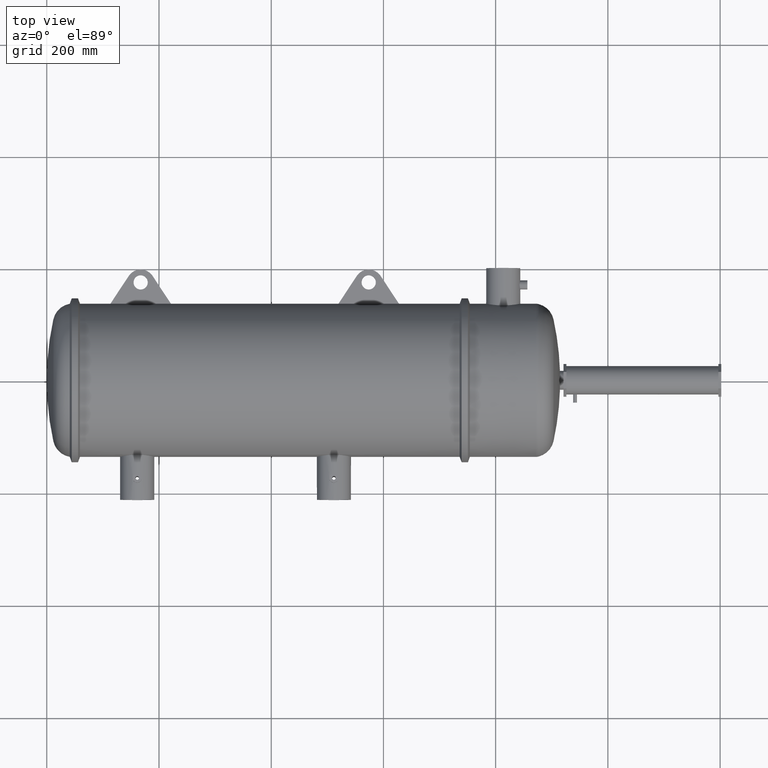
[diagram: clean part render]
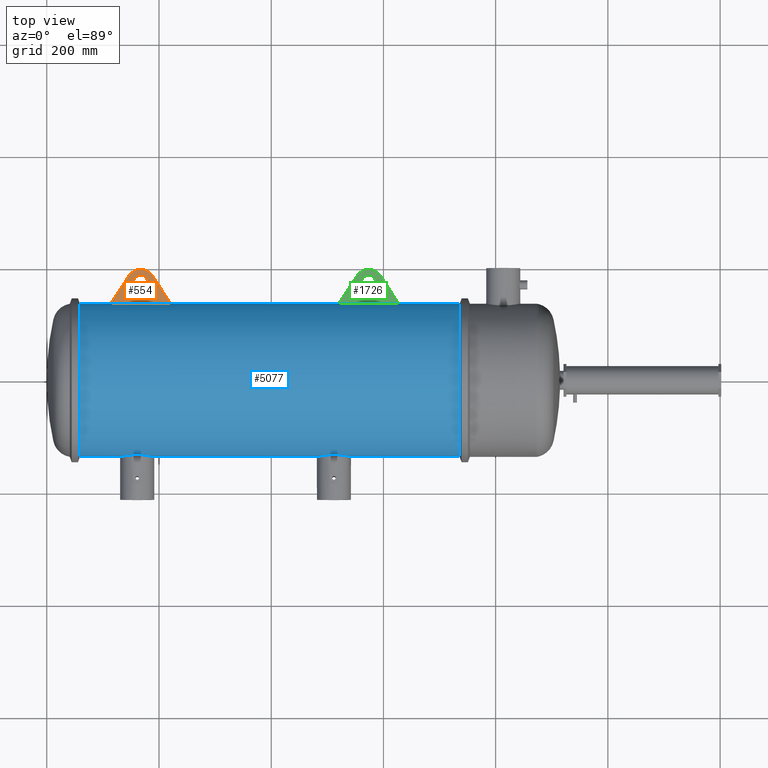
[diagram: same view with three faces highlighted in distinct colors, each labeled with its STEP entity id]
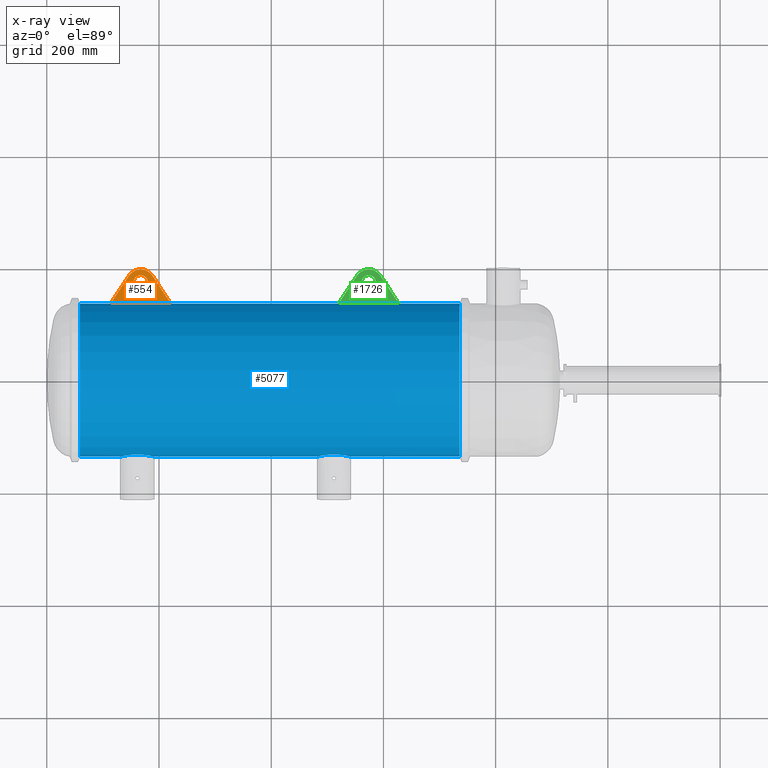
[diagram: x-ray of the same camera — body ghosted, the three highlighted faces saturated]
A machine part, top view with three faces highlighted in distinct colors.
The next image is the same camera in x-ray (body ghosted, the three faces saturated) — at least one of them is partly hidden behind the body in this view.
Their STEP definitions:

[orange] entity #554 — the highlighted planar face has unit normal (-0, 0, 1).
#82 = ORIENTED_EDGE ( 'NONE', *, *, #4772, .T. ) ;
#318 = DIRECTION ( 'NONE',  ( 1.000000000000000000, -1.127465836012422800E-020, 0.0000000000000000000 ) ) ;
#380 = VECTOR ( 'NONE', #318, 39.37007874015748100 ) ;
#395 = EDGE_CURVE ( 'NONE', #2654, #2582, #5190, .T. ) ;
#473 = AXIS2_PLACEMENT_3D ( 'NONE', #3913, #2188, #5355 ) ;
#554 = ADVANCED_FACE ( 'NONE', ( #3702, #671 ), #3257, .T. ) ;
#657 = CIRCLE ( 'NONE', #473, 0.5000000000000236500 ) ;
#671 = FACE_OUTER_BOUND ( 'NONE', #4018, .T. ) ;
#715 = CARTESIAN_POINT ( 'NONE',  ( 6.587435272225750500, 6.873161847635675100, 0.1250000000000000000 ) ) ;
#815 = EDGE_LOOP ( 'NONE', ( #3046, #2732 ) ) ;
#824 = CARTESIAN_POINT ( 'NONE',  ( 8.541339260878247700, 5.632613194402193100, 0.1250000000000000000 ) ) ;
#1002 = VECTOR ( 'NONE', #5394, 39.37007874015748900 ) ;
#1088 = VECTOR ( 'NONE', #3783, 39.37007874015748100 ) ;
#1440 = VERTEX_POINT ( 'NONE', #1548 ) ;
#1548 = CARTESIAN_POINT ( 'NONE',  ( 7.394061296271687800, 7.372354586900658400, 0.1250000000000000000 ) ) ;
#1574 = CARTESIAN_POINT ( 'NONE',  ( 6.087435272225726600, 6.873161847635675100, 0.1250000000000000000 ) ) ;
#1832 = EDGE_CURVE ( 'NONE', #5641, #5034, #657, .T. ) ;
#1883 = CARTESIAN_POINT ( 'NONE',  ( 0.0000000000000000000, 0.0000000000000000000, 0.1250000000000000000 ) ) ;
#1918 = DIRECTION ( 'NONE',  ( -0.0000000000000000000, 0.0000000000000000000, 1.000000000000000000 ) ) ;
#2040 = CARTESIAN_POINT ( 'NONE',  ( 8.712182130583267200, 5.373545713627409600, 0.1250000000000000000 ) ) ;
#2134 = CARTESIAN_POINT ( 'NONE',  ( -0.0007269337269812082200, 5.373545713627409600, 0.1250000000000000000 ) ) ;
#2165 = VERTEX_POINT ( 'NONE', #2040 ) ;
#2188 = DIRECTION ( 'NONE',  ( -0.0000000000000000000, 0.0000000000000000000, 1.000000000000000000 ) ) ;
#2397 = CARTESIAN_POINT ( 'NONE',  ( 0.6405327168248127200, -0.4224013352940694200, 0.1250000000000000000 ) ) ;
#2559 = CIRCLE ( 'NONE', #4883, 0.9999999999999740200 ) ;
#2582 = VERTEX_POINT ( 'NONE', #4405 ) ;
#2654 = VERTEX_POINT ( 'NONE', #5095 ) ;
#2732 = ORIENTED_EDGE ( 'NONE', *, *, #2743, .F. ) ;
#2743 = EDGE_CURVE ( 'NONE', #5034, #5641, #5037, .T. ) ;
#2856 = EDGE_CURVE ( 'NONE', #2654, #2165, #3751, .T. ) ;
#2866 = ORIENTED_EDGE ( 'NONE', *, *, #2856, .T. ) ;
#2950 = EDGE_CURVE ( 'NONE', #1440, #2582, #2559, .T. ) ;
#3046 = ORIENTED_EDGE ( 'NONE', *, *, #1832, .F. ) ;
#3257 = PLANE ( 'NONE',  #5497 ) ;
#3443 = DIRECTION ( 'NONE',  ( 1.000000000000000000, 0.0000000000000000000, 0.0000000000000000000 ) ) ;
#3602 = ORIENTED_EDGE ( 'NONE', *, *, #2950, .T. ) ;
#3702 = FACE_BOUND ( 'NONE', #815, .T. ) ;
#3751 = LINE ( 'NONE', #2134, #380 ) ;
#3783 = DIRECTION ( 'NONE',  ( 0.5505241841823829100, 0.8348192155373053100, 0.0000000000000000000 ) ) ;
#3834 = DIRECTION ( 'NONE',  ( -0.0000000000000000000, 0.0000000000000000000, 1.000000000000000000 ) ) ;
#3913 = CARTESIAN_POINT ( 'NONE',  ( 6.587435272225750500, 6.873161847635675100, 0.1250000000000000000 ) ) ;
#4018 = EDGE_LOOP ( 'NONE', ( #5534, #2866, #82, #3602 ) ) ;
#4241 = LINE ( 'NONE', #824, #1002 ) ;
#4336 = CARTESIAN_POINT ( 'NONE',  ( 6.587435286250647300, 6.781292424385170200, 0.1250000000000000000 ) ) ;
#4397 = DIRECTION ( 'NONE',  ( -0.0000000000000000000, 0.0000000000000000000, 1.000000000000000000 ) ) ;
#4405 = CARTESIAN_POINT ( 'NONE',  ( 5.780809276228903400, 7.372354586899699100, 0.1250000000000000000 ) ) ;
#4772 = EDGE_CURVE ( 'NONE', #2165, #1440, #4241, .T. ) ;
#4883 = AXIS2_PLACEMENT_3D ( 'NONE', #4336, #4397, #3443 ) ;
#5034 = VERTEX_POINT ( 'NONE', #5199 ) ;
#5037 = CIRCLE ( 'NONE', #5078, 0.5000000000000236500 ) ;
#5078 = AXIS2_PLACEMENT_3D ( 'NONE', #715, #3834, #5655 ) ;
#5095 = CARTESIAN_POINT ( 'NONE',  ( 4.462688413873690900, 5.373545713627409600, 0.1250000000000000000 ) ) ;
#5190 = LINE ( 'NONE', #2397, #1088 ) ;
#5199 = CARTESIAN_POINT ( 'NONE',  ( 7.087435272225773600, 6.873161847635675100, 0.1250000000000000000 ) ) ;
#5355 = DIRECTION ( 'NONE',  ( 1.000000000000000000, 0.0000000000000000000, 0.0000000000000000000 ) ) ;
#5394 = DIRECTION ( 'NONE',  ( -0.5505241760193765300, 0.8348192209204254900, 0.0000000000000000000 ) ) ;
#5497 = AXIS2_PLACEMENT_3D ( 'NONE', #1883, #1918, #5509 ) ;
#5509 = DIRECTION ( 'NONE',  ( 1.000000000000000000, 0.0000000000000000000, 0.0000000000000000000 ) ) ;
#5534 = ORIENTED_EDGE ( 'NONE', *, *, #395, .F. ) ;
#5641 = VERTEX_POINT ( 'NONE', #1574 ) ;
#5655 = DIRECTION ( 'NONE',  ( 1.000000000000000000, 0.0000000000000000000, 0.0000000000000000000 ) ) ;

[blue] entity #5077 — the highlighted cylindrical surface (partial cylindrical patch) has radius 136.439 mm, axis along (-1, 0, -0).
#33 = DIRECTION ( 'NONE',  ( -1.000000000000000000, 1.127465836012422800E-020, -0.0000000000000000000 ) ) ;
#49 = DIRECTION ( 'NONE',  ( -1.000000000000000000, 1.127465836012422800E-020, -0.0000000000000000000 ) ) ;
#68 = VERTEX_POINT ( 'NONE', #412 ) ;
#111 = CARTESIAN_POINT ( 'NONE',  ( 20.06735880377336300, -5.233779090356986100, 1.194397006876826200 ) ) ;
#126 = CARTESIAN_POINT ( 'NONE',  ( 19.31370183040849800, -5.299003630638065200, 0.8598501731726979600 ) ) ;
#128 = EDGE_CURVE ( 'NONE', #5117, #2629, #1024, .T. ) ;
#144 = CARTESIAN_POINT ( 'NONE',  ( 19.72392412461144000, -5.250205793346866700, 1.119955949187681800 ) ) ;
#156 = AXIS2_PLACEMENT_3D ( 'NONE', #3772, #2430, #5175 ) ;
#164 = CARTESIAN_POINT ( 'NONE',  ( 20.10683867415926700, -5.233331567630942900, 1.196357597203484800 ) ) ;
#167 = EDGE_CURVE ( 'NONE', #4083, #768, #3010, .T. ) ;
#199 = VECTOR ( 'NONE', #871, 39.37007874015748100 ) ;
#208 = CARTESIAN_POINT ( 'NONE',  ( 21.11861795262816700, -5.322680822778227000, 0.6983892442578063500 ) ) ;
#249 = AXIS2_PLACEMENT_3D ( 'NONE', #1336, #33, #988 ) ;
#253 = CARTESIAN_POINT ( 'NONE',  ( 6.326213538751625600, -5.233220782902260600, 1.196841999300759100 ) ) ;
#269 = CARTESIAN_POINT ( 'NONE',  ( 5.960658024388714600, -5.247379026966949100, 1.133134895030052800 ) ) ;
#286 = CARTESIAN_POINT ( 'NONE',  ( 5.979306186552293000, -5.246041029533571100, 1.139311902248827200 ) ) ;
#293 = VERTEX_POINT ( 'NONE', #2851 ) ;
#305 = CIRCLE ( 'NONE', #156, 5.371625673612975000 ) ;
#318 = DIRECTION ( 'NONE',  ( 1.000000000000000000, -1.127465836012422800E-020, 0.0000000000000000000 ) ) ;
#328 = CARTESIAN_POINT ( 'NONE',  ( 5.149611386536401300, -5.368251035232424900, 3.934038153631442900E-022 ) ) ;
#330 = CARTESIAN_POINT ( 'NONE',  ( -0.0007269337269812082200, 5.373545713627409600, 0.1250000000000000000 ) ) ;
#345 = CARTESIAN_POINT ( 'NONE',  ( 7.543312173937978000, -5.368251035232425700, 0.07932594045176891200 ) ) ;
#352 = CARTESIAN_POINT ( 'NONE',  ( 20.46364765338795200, 5.375000311993521700, 6.578344187407872600E-016 ) ) ;
#364 = CARTESIAN_POINT ( 'NONE',  ( 7.479635900639077100, -5.354411179039209900, 0.3871925882771870600 ) ) ;
#380 = VECTOR ( 'NONE', #318, 39.37007874015748100 ) ;
#405 = CARTESIAN_POINT ( 'NONE',  ( 7.421417180750509600, -5.342332131595959800, 0.5319785464895411300 ) ) ;
#412 = CARTESIAN_POINT ( 'NONE',  ( 24.71122289108931700, 5.375000311993521700, 6.578344187407872600E-016 ) ) ;
#458 = CARTESIAN_POINT ( 'NONE',  ( 18.94961138653640700, -5.368251035232425700, 0.07825224946126402300 ) ) ;
#488 = ORIENTED_EDGE ( 'NONE', *, *, #982, .T. ) ;
#500 = EDGE_CURVE ( 'NONE', #3651, #2485, #4266, .T. ) ;
#562 = CARTESIAN_POINT ( 'NONE',  ( 18.98041546848513100, -5.361466323446761900, 0.2726792930738178300 ) ) ;
#584 = CARTESIAN_POINT ( 'NONE',  ( 20.45644482302516900, -5.242249987839469000, 1.156686122263862200 ) ) ;
#598 = CARTESIAN_POINT ( 'NONE',  ( 19.13006903465265300, -5.330902090584523000, 0.6331893477554764200 ) ) ;
#600 = CARTESIAN_POINT ( 'NONE',  ( 21.22148006781654000, -5.342344859803780800, 0.5318484861100810600 ) ) ;
#616 = CARTESIAN_POINT ( 'NONE',  ( 20.04772051198501600, -5.234113288567275600, 1.192931914414428800 ) ) ;
#620 = CARTESIAN_POINT ( 'NONE',  ( 21.01989743351668600, -5.305492023519797800, 0.8191888919053246200 ) ) ;
#639 = EDGE_CURVE ( 'NONE', #4352, #768, #2416, .T. ) ;
#685 = CARTESIAN_POINT ( 'NONE',  ( 6.502797354559925600, -5.234990743197099200, 1.189173855986971100 ) ) ;
#698 = DIRECTION ( 'NONE',  ( -1.000000000000000000, 1.127465836012422800E-020, -0.0000000000000000000 ) ) ;
#729 = CARTESIAN_POINT ( 'NONE',  ( 24.71122289108932100, 5.375000311993521700, 0.04167136849551431700 ) ) ;
#749 = CARTESIAN_POINT ( 'NONE',  ( 5.225982788380800800, -5.351732358042007800, 0.4224913137375762600 ) ) ;
#766 = CARTESIAN_POINT ( 'NONE',  ( 21.34331217393797400, -5.368251035232424900, 0.0000000000000000000 ) ) ;
#768 = VERTEX_POINT ( 'NONE', #766 ) ;
#769 = CARTESIAN_POINT ( 'NONE',  ( 5.272575265292786600, -5.342166920141344200, 0.5298667125895311100 ) ) ;
#805 = CARTESIAN_POINT ( 'NONE',  ( 7.283049283944248700, -5.316301929432665200, 0.7454092601757985600 ) ) ;
#825 = CARTESIAN_POINT ( 'NONE',  ( 6.731550913065497400, -5.247326707212375000, 1.133377135432855700 ) ) ;
#866 = CARTESIAN_POINT ( 'NONE',  ( 7.075426968230679000, -5.283628909777915400, 0.9500474207275049200 ) ) ;
#871 = DIRECTION ( 'NONE',  ( 1.000000000000000000, -1.127465836012422800E-020, 0.0000000000000000000 ) ) ;
#888 = LINE ( 'NONE', #3251, #5182 ) ;
#896 = VERTEX_POINT ( 'NONE', #5323 ) ;
#909 = ORIENTED_EDGE ( 'NONE', *, *, #639, .T. ) ;
#926 = CARTESIAN_POINT ( 'NONE',  ( 5.149611386536401300, -5.368251035232424900, 3.934038153631442900E-022 ) ) ;
#947 = CARTESIAN_POINT ( 'NONE',  ( 20.56892737537739200, -5.250200187789792100, 1.119982121431812600 ) ) ;
#978 = ORIENTED_EDGE ( 'NONE', *, *, #167, .F. ) ;
#981 = CARTESIAN_POINT ( 'NONE',  ( 20.30324904070974100, -5.235004604428955800, 1.189113119929174900 ) ) ;
#982 = EDGE_CURVE ( 'NONE', #68, #2485, #997, .T. ) ;
#988 = DIRECTION ( 'NONE',  ( 0.0000000000000000000, -1.000000000000000000, 0.0000000000000000000 ) ) ;
#993 = CARTESIAN_POINT ( 'NONE',  ( 19.37185984747718600, -5.290177449395270200, 0.9125946016845124500 ) ) ;
#997 =( BOUNDED_CURVE ( )  B_SPLINE_CURVE ( 3, ( #2538, #729, #3884, #1607 ),
 .UNSPECIFIED., .F., .T. ) 
 B_SPLINE_CURVE_WITH_KNOTS ( ( 4, 4 ),
 ( 0.0000000000000000000, 0.02327252341427968000 ),
 .UNSPECIFIED. ) 
 CURVE ( )  GEOMETRIC_REPRESENTATION_ITEM ( )  RATIONAL_B_SPLINE_CURVE ( ( 1.000000000000000000, 0.9999548663137659600, 0.9999548663137659600, 1.000000000000000000 ) ) 
 REPRESENTATION_ITEM ( '' )  );
#1012 = CARTESIAN_POINT ( 'NONE',  ( 19.24474850139872100, -5.310007799299198100, 0.7908561555310276200 ) ) ;
#1013 = EDGE_CURVE ( 'NONE', #2630, #2388, #2865, .T. ) ;
#1024 = CIRCLE ( 'NONE', #249, 5.371625673612972400 ) ;
#1028 = CARTESIAN_POINT ( 'NONE',  ( 19.76103299708881900, -5.247351466558344100, 1.133262569603068700 ) ) ;
#1041 = ORIENTED_EDGE ( 'NONE', *, *, #128, .F. ) ;
#1043 = CARTESIAN_POINT ( 'NONE',  ( -0.0007269337269812082200, 5.375000311993521700, 6.578344187407872600E-016 ) ) ;
#1050 = ORIENTED_EDGE ( 'NONE', *, *, #3248, .T. ) ;
#1052 = CARTESIAN_POINT ( 'NONE',  ( 21.30222816600492000, -5.359244614724526700, 0.3115207655409570300 ) ) ;
#1102 = ORIENTED_EDGE ( 'NONE', *, *, #5627, .F. ) ;
#1103 = ORIENTED_EDGE ( 'NONE', *, *, #2642, .T. ) ;
#1109 = CARTESIAN_POINT ( 'NONE',  ( 21.34331217393797100, -5.368251035232424900, 0.07930491497186011000 ) ) ;
#1147 = CARTESIAN_POINT ( 'NONE',  ( -0.0007269337269812082200, -5.368251035232424900, 0.0000000000000000000 ) ) ;
#1176 = CARTESIAN_POINT ( 'NONE',  ( 5.180399016999389900, -5.361469904903833200, 0.2726073616226137900 ) ) ;
#1195 = CARTESIAN_POINT ( 'NONE',  ( 5.556712643078353300, -5.292417010794805400, 0.8995174716596676700 ) ) ;
#1224 = EDGE_CURVE ( 'NONE', #2630, #5117, #888, .T. ) ;
#1249 = CARTESIAN_POINT ( 'NONE',  ( 4.462688413873690900, 5.373545713627409600, 0.1250000000000000000 ) ) ;
#1250 = CARTESIAN_POINT ( 'NONE',  ( 6.945853462457661100, -5.267014283931655600, 1.038905606634983800 ) ) ;
#1267 = VECTOR ( 'NONE', #2277, 39.37007874015748100 ) ;
#1306 = ORIENTED_EDGE ( 'NONE', *, *, #1390, .T. ) ;
#1336 = CARTESIAN_POINT ( 'NONE',  ( 2.329100979084119100, 0.003374638380548247100, 0.0000000000000000000 ) ) ;
#1350 = B_SPLINE_CURVE_WITH_KNOTS ( 'NONE', 3,
 ( #2769, #458, #3771, #562, #2840, #2365, #5080, #1935, #2429, #5541, #598, #3273, #1012, #126, #3291, #1955, #993, #4149, #2803, #5559, #4166, #2857, #144, #1028, #4626, #3712, #1458, #2347, #5520, #616, #111, #164, #1493, #1441 ),
 .UNSPECIFIED., .F., .F.,
 ( 4, 2, 2, 2, 2, 2, 2, 2, 2, 2, 2, 2, 2, 2, 2, 2, 4 ),
 ( 0.09534419062650140200, 0.1013032078315040400, 0.1042827164340053800, 0.1072622250365067300, 0.1102417336390080600, 0.1132212422415094000, 0.1191802594465120600, 0.1206700137477628300, 0.1221597680490135700, 0.1251392766515150900, 0.1310982938565180600, 0.1325880481577690600, 0.1340778024590200400, 0.1370573110615223000, 0.1400368196640245600, 0.1415265739652755200, 0.1430163282665264900 ),
 .UNSPECIFIED. ) ;
#1390 = EDGE_CURVE ( 'NONE', #293, #2629, #4184, .T. ) ;
#1427 = CARTESIAN_POINT ( 'NONE',  ( 20.67745853364357000, -5.259580338480863500, 1.075455758541094700 ) ) ;
#1441 = CARTESIAN_POINT ( 'NONE',  ( 20.14646178023718900, -5.233218864319112200, 1.196850393700786800 ) ) ;
#1458 = CARTESIAN_POINT ( 'NONE',  ( 19.87384576257918000, -5.240170712604278700, 1.166042836996396000 ) ) ;
#1474 = CARTESIAN_POINT ( 'NONE',  ( 21.33550657205138300, -5.366496152617634700, 0.1575296930776905700 ) ) ;
#1493 = CARTESIAN_POINT ( 'NONE',  ( 20.12671192958943700, -5.233218864319112200, 1.196850393700786800 ) ) ;
#1496 = CARTESIAN_POINT ( 'NONE',  ( 21.08318138053628100, -5.316325201343868700, 0.7452431268776933400 ) ) ;
#1516 = CARTESIAN_POINT ( 'NONE',  ( 21.12999773239430500, -5.324771274659510400, 0.6822717990872144700 ) ) ;
#1585 = CARTESIAN_POINT ( 'NONE',  ( 5.923561636245130700, -5.250234982434636600, 1.119819046352157600 ) ) ;
#1593 = CARTESIAN_POINT ( 'NONE',  ( 20.46268841387367500, 5.373545713627407800, 0.1250000000000000000 ) ) ;
#1607 = CARTESIAN_POINT ( 'NONE',  ( 24.71218213058318000, 5.373545713627409600, 0.1250000000000000000 ) ) ;
#1611 = CARTESIAN_POINT ( 'NONE',  ( 8.711542652019348400, 5.374515423986700600, 0.08333991581732268200 ) ) ;
#1650 = CARTESIAN_POINT ( 'NONE',  ( 6.149985645058522200, -5.236763931734351700, 1.181258524394167300 ) ) ;
#1668 = CARTESIAN_POINT ( 'NONE',  ( 5.395259596922917600, -5.318736677239390300, 0.7306097749240252300 ) ) ;
#1707 = CARTESIAN_POINT ( 'NONE',  ( 6.712774111565599000, -5.245981530479516800, 1.139586178890254600 ) ) ;
#1763 = ORIENTED_EDGE ( 'NONE', *, *, #4737, .F. ) ;
#1772 = CARTESIAN_POINT ( 'NONE',  ( 7.043640051913278900, -5.279325753257568400, 0.9736166690398270200 ) ) ;
#1845 = CARTESIAN_POINT ( 'NONE',  ( 20.84388587186285200, -5.279358282931522900, 0.9734402259026468900 ) ) ;
#1887 = ORIENTED_EDGE ( 'NONE', *, *, #4988, .T. ) ;
#1903 = LINE ( 'NONE', #2762, #1267 ) ;
#1935 = CARTESIAN_POINT ( 'NONE',  ( 19.05592228707059000, -5.345548050957483500, 0.4946680764367486500 ) ) ;
#1955 = CARTESIAN_POINT ( 'NONE',  ( 19.35691617185209200, -5.292386643314404000, 0.8996962492115383500 ) ) ;
#1957 = CARTESIAN_POINT ( 'NONE',  ( 21.31621825021854000, -5.362277935327468500, 0.2539836251679794500 ) ) ;
#1976 = CARTESIAN_POINT ( 'NONE',  ( 20.93609541495386500, -5.292334797267721500, 0.9002545064773362900 ) ) ;
#2040 = CARTESIAN_POINT ( 'NONE',  ( 8.712182130583267200, 5.373545713627409600, 0.1250000000000000000 ) ) ;
#2041 = CARTESIAN_POINT ( 'NONE',  ( 6.617937425789081700, -5.240110884179146400, 1.166311682372647400 ) ) ;
#2059 = ORIENTED_EDGE ( 'NONE', *, *, #1013, .T. ) ;
#2083 = CARTESIAN_POINT ( 'NONE',  ( 5.513519687782340900, -5.299032257232444600, 0.8596736066039890600 ) ) ;
#2086 = VERTEX_POINT ( 'NONE', #4138 ) ;
#2102 = CARTESIAN_POINT ( 'NONE',  ( 5.571648951850574100, -5.290208332039759900, 0.9124154559410536700 ) ) ;
#2134 = CARTESIAN_POINT ( 'NONE',  ( -0.0007269337269812082200, 5.373545713627409600, 0.1250000000000000000 ) ) ;
#2165 = VERTEX_POINT ( 'NONE', #2040 ) ;
#2203 = CARTESIAN_POINT ( 'NONE',  ( 7.245878840981746700, -5.309841623712728200, 0.7905825859204184100 ) ) ;
#2223 = CARTESIAN_POINT ( 'NONE',  ( 7.516203931738992600, -5.362274812398307100, 0.2540499706158899600 ) ) ;
#2243 = CARTESIAN_POINT ( 'NONE',  ( 4.463647653387963200, 5.375000311993521700, 6.578344187407872600E-016 ) ) ;
#2277 = DIRECTION ( 'NONE',  ( -1.000000000000000000, 1.127465836012422800E-020, -0.0000000000000000000 ) ) ;
#2299 = CARTESIAN_POINT ( 'NONE',  ( 20.87565793828477100, -5.283660843498650700, 0.9498696840078932900 ) ) ;
#2315 = CARTESIAN_POINT ( 'NONE',  ( 2.329100979084119100, 5.375000311993520800, 6.578344187407871700E-016 ) ) ;
#2334 = CARTESIAN_POINT ( 'NONE',  ( 20.58720116444671800, -5.251702843807398000, 1.112915830643174300 ) ) ;
#2347 = CARTESIAN_POINT ( 'NONE',  ( 19.95042480810963100, -5.236747387793254700, 1.181331831600833900 ) ) ;
#2365 = CARTESIAN_POINT ( 'NONE',  ( 19.01283989570337200, -5.354506110197232400, 0.3858565486828770500 ) ) ;
#2388 = VERTEX_POINT ( 'NONE', #2972 ) ;
#2416 = B_SPLINE_CURVE_WITH_KNOTS ( 'NONE', 3,
 ( #5544, #3679, #981, #2825, #584, #4153, #4597, #947, #2334, #1427, #4103, #1845, #2299, #1976, #4203, #620, #2927, #1496, #4648, #208, #1516, #2474, #600, #4631, #5639, #4669, #1052, #2431, #1957, #1474, #1109, #5136 ),
 .UNSPECIFIED., .F., .F.,
 ( 4, 2, 2, 2, 2, 2, 2, 2, 2, 2, 2, 2, 2, 2, 2, 4 ),
 ( 0.1430163282665264900, 0.1489721874126156400, 0.1519501169856602200, 0.1534390817721825200, 0.1549280465587048200, 0.1608839057047942700, 0.1638618352778388700, 0.1668397648508834800, 0.1698176944239280500, 0.1713066592104504600, 0.1727956239969728700, 0.1787514831430626300, 0.1817294127161075400, 0.1832183775026299800, 0.1847073422891524200, 0.1906632014352420400 ),
 .UNSPECIFIED. ) ;
#2429 = CARTESIAN_POINT ( 'NONE',  ( 19.07263917002066800, -5.342154050015828700, 0.5299970225787588000 ) ) ;
#2430 = DIRECTION ( 'NONE',  ( -1.000000000000000000, 1.127465836012422800E-020, -0.0000000000000000000 ) ) ;
#2431 = CARTESIAN_POINT ( 'NONE',  ( 21.31187960085991800, -5.361332996889768100, 0.2732076668192129900 ) ) ;
#2445 = DIRECTION ( 'NONE',  ( -1.000000000000000000, 1.127465836012422800E-020, -0.0000000000000000000 ) ) ;
#2474 = CARTESIAN_POINT ( 'NONE',  ( 21.18471990649060300, -5.334981070294603900, 0.6005510153081257100 ) ) ;
#2483 = VERTEX_POINT ( 'NONE', #2637 ) ;
#2485 = VERTEX_POINT ( 'NONE', #4475 ) ;
#2520 = CARTESIAN_POINT ( 'NONE',  ( 8.712182130583267200, 5.373545713627409600, 0.1250000000000000000 ) ) ;
#2538 = CARTESIAN_POINT ( 'NONE',  ( 24.71122289108931700, 5.375000311993521700, 6.578344187407872600E-016 ) ) ;
#2579 = CARTESIAN_POINT ( 'NONE',  ( 6.266879268636660800, -5.233786381379125000, 1.194365043667188400 ) ) ;
#2629 = VERTEX_POINT ( 'NONE', #2315 ) ;
#2630 = VERTEX_POINT ( 'NONE', #926 ) ;
#2637 = CARTESIAN_POINT ( 'NONE',  ( 8.711222891089402500, 5.375000311993521700, 6.578344187407872600E-016 ) ) ;
#2638 = CARTESIAN_POINT ( 'NONE',  ( 6.877144396762638200, -5.259548232879795100, 1.075612466819988900 ) ) ;
#2642 = EDGE_CURVE ( 'NONE', #2086, #4352, #1350, .T. ) ;
#2654 = VERTEX_POINT ( 'NONE', #5095 ) ;
#2669 =( BOUNDED_CURVE ( )  B_SPLINE_CURVE ( 3, ( #5252, #3914, #1611, #2520 ),
 .UNSPECIFIED., .F., .T. ) 
 B_SPLINE_CURVE_WITH_KNOTS ( ( 4, 4 ),
 ( 0.0000000000000000000, 0.02327252341427968000 ),
 .UNSPECIFIED. ) 
 CURVE ( )  GEOMETRIC_REPRESENTATION_ITEM ( )  RATIONAL_B_SPLINE_CURVE ( ( 1.000000000000000000, 0.9999548663137659600, 0.9999548663137659600, 1.000000000000000000 ) ) 
 REPRESENTATION_ITEM ( '' )  );
#2680 = CARTESIAN_POINT ( 'NONE',  ( 7.466367960943905800, -5.351612422980320400, 0.4240057391659444700 ) ) ;
#2762 = CARTESIAN_POINT ( 'NONE',  ( -0.0007269337269812082200, 5.375000311993521700, 6.578344187407872600E-016 ) ) ;
#2769 = CARTESIAN_POINT ( 'NONE',  ( 18.94961138653640000, -5.368251035232424900, 3.934107722467178800E-022 ) ) ;
#2789 = EDGE_CURVE ( 'NONE', #2086, #2388, #2834, .T. ) ;
#2803 = CARTESIAN_POINT ( 'NONE',  ( 19.44881216357448400, -5.279389361365066000, 0.9732687153304362400 ) ) ;
#2825 = CARTESIAN_POINT ( 'NONE',  ( 20.41835244524018100, -5.240132478017382100, 1.166214679730571000 ) ) ;
#2834 = LINE ( 'NONE', #1147, #5749 ) ;
#2840 = CARTESIAN_POINT ( 'NONE',  ( 18.99004507753147300, -5.359375321218835500, 0.3109409316231727700 ) ) ;
#2851 = CARTESIAN_POINT ( 'NONE',  ( 4.463647653387963200, 5.375000311993521700, 6.578344187407872600E-016 ) ) ;
#2856 = EDGE_CURVE ( 'NONE', #2654, #2165, #3751, .T. ) ;
#2857 = CARTESIAN_POINT ( 'NONE',  ( 19.70544123432713200, -5.251726001169133800, 1.112806902747038000 ) ) ;
#2865 = B_SPLINE_CURVE_WITH_KNOTS ( 'NONE', 3,
 ( #328, #3841, #3928, #1176, #2997, #4757, #749, #3473, #769, #4368, #2955, #1668, #5227, #2083, #5248, #1195, #2102, #5709, #5686, #3909, #2975, #5664, #1585, #269, #286, #4348, #4817, #1650, #4736, #5291, #2579, #5751, #253, #3393, #685, #2041, #5207, #1707, #825, #3497, #4861, #2638, #1250, #1772, #866, #5810, #4928, #3041, #2203, #805, #3100, #4432, #5375, #5832, #405, #2680, #364, #4008, #3556, #4476, #2223, #4028, #345, #4879 ),
 .UNSPECIFIED., .F., .F.,
 ( 4, 2, 2, 2, 2, 2, 2, 2, 2, 2, 2, 2, 2, 2, 2, 2, 2, 2, 2, 2, 2, 2, 2, 2, 2, 2, 2, 2, 2, 2, 2, 4 ),
 ( 0.09534419062650142900, 0.1013016288020480300, 0.1042803478898213200, 0.1072590669775946200, 0.1102377860653679100, 0.1132165051531412000, 0.1191739433286877300, 0.1206633028725743500, 0.1221526624164609600, 0.1251313815042342500, 0.1310888196797808400, 0.1325781792236674400, 0.1340675387675540100, 0.1370462578553272000, 0.1400249769431004000, 0.1415143364869869400, 0.1430036960308734800, 0.1489611342064197700, 0.1519398532941929600, 0.1534292128380795300, 0.1549185723819660700, 0.1608760105575121300, 0.1638547296452851600, 0.1668334487330581900, 0.1698121678208312200, 0.1713015273647177100, 0.1727908869086042200, 0.1787483250841502300, 0.1817270441719232300, 0.1832164037158097200, 0.1847057632596962000, 0.1906632014352421200 ),
 .UNSPECIFIED. ) ;
#2927 = CARTESIAN_POINT ( 'NONE',  ( 21.04602839329567100, -5.309866994982126400, 0.7904119337010352400 ) ) ;
#2955 = CARTESIAN_POINT ( 'NONE',  ( 5.329975643639637700, -5.330919927525917100, 0.6330388155321699000 ) ) ;
#2972 = CARTESIAN_POINT ( 'NONE',  ( 7.543312173937975400, -5.368251035232424900, 1.465719003703918300E-016 ) ) ;
#2975 = CARTESIAN_POINT ( 'NONE',  ( 5.814238948717513000, -5.259697747504539200, 1.074888450947592900 ) ) ;
#2997 = CARTESIAN_POINT ( 'NONE',  ( 5.190023764821963100, -5.359379929022926700, 0.3108603836466521400 ) ) ;
#3010 = LINE ( 'NONE', #5478, #3294 ) ;
#3012 = CARTESIAN_POINT ( 'NONE',  ( -0.0007269337269812082200, 0.003374638380548247100, 0.0000000000000000000 ) ) ;
#3041 = CARTESIAN_POINT ( 'NONE',  ( 7.219735579985331800, -5.305465330610824800, 0.8193619230316553400 ) ) ;
#3099 = CARTESIAN_POINT ( 'NONE',  ( 4.463647653387963200, 5.375000311993521700, 0.04167136849551240900 ) ) ;
#3100 = CARTESIAN_POINT ( 'NONE',  ( 7.295098059875567900, -5.318438005585744800, 0.7300168180977674200 ) ) ;
#3248 = EDGE_CURVE ( 'NONE', #2483, #2165, #2669, .T. ) ;
#3251 = CARTESIAN_POINT ( 'NONE',  ( -0.0007269337269812082200, -5.368251035232424900, 0.0000000000000000000 ) ) ;
#3273 = CARTESIAN_POINT ( 'NONE',  ( 19.19538431361506500, -5.318714222355722200, 0.7307741862778018800 ) ) ;
#3291 = CARTESIAN_POINT ( 'NONE',  ( 19.32785830992957400, -5.296796767015586700, 0.8733406935244856200 ) ) ;
#3294 = VECTOR ( 'NONE', #49, 39.37007874015748100 ) ;
#3334 = CARTESIAN_POINT ( 'NONE',  ( 20.46268841387367500, 5.373545713627407800, 0.1250000000000000000 ) ) ;
#3393 = CARTESIAN_POINT ( 'NONE',  ( 6.424942663514833000, -5.233211310495377700, 1.196883444037038400 ) ) ;
#3400 = CARTESIAN_POINT ( 'NONE',  ( 20.46364765338795500, 5.375000311993521700, 0.04167136849551240900 ) ) ;
#3473 = CARTESIAN_POINT ( 'NONE',  ( 5.255867040099112800, -5.345559335708038900, 0.4945454419549028000 ) ) ;
#3497 = CARTESIAN_POINT ( 'NONE',  ( 6.768567392986459400, -5.250171224054015300, 1.120117950498966500 ) ) ;
#3556 = CARTESIAN_POINT ( 'NONE',  ( 7.502206400468704600, -5.359239921588832400, 0.3116018472614262000 ) ) ;
#3651 = VERTEX_POINT ( 'NONE', #3334 ) ;
#3673 = DIRECTION ( 'NONE',  ( -1.000000000000000000, 1.127465836012422800E-020, -0.0000000000000000000 ) ) ;
#3679 = CARTESIAN_POINT ( 'NONE',  ( 20.22541931606412300, -5.233218864319112200, 1.196850393700786600 ) ) ;
#3712 = CARTESIAN_POINT ( 'NONE',  ( 19.83594636734299500, -5.242283644783574600, 1.156532605065413900 ) ) ;
#3751 = LINE ( 'NONE', #2134, #380 ) ;
#3771 = CARTESIAN_POINT ( 'NONE',  ( 18.95721047033205400, -5.366541777985773400, 0.1562072958316407200 ) ) ;
#3772 = CARTESIAN_POINT ( 'NONE',  ( 28.97085687440993600, 0.003374638380548246200, 0.0000000000000000000 ) ) ;
#3820 = CYLINDRICAL_SURFACE ( 'NONE', #4487, 5.371625673612973300 ) ;
#3841 = CARTESIAN_POINT ( 'NONE',  ( 5.149611386536401300, -5.368251035232422200, 0.07823151406099317100 ) ) ;
#3849 = CARTESIAN_POINT ( 'NONE',  ( 20.46332789245120100, 5.374515423986700600, 0.08333991581731957400 ) ) ;
#3884 = CARTESIAN_POINT ( 'NONE',  ( 24.71154265201926100, 5.374515423986700600, 0.08333991581732272400 ) ) ;
#3909 = CARTESIAN_POINT ( 'NONE',  ( 5.745630208074263800, -5.267184114183866200, 1.038033561016157700 ) ) ;
#3914 = CARTESIAN_POINT ( 'NONE',  ( 8.711222891089406100, 5.375000311993521700, 0.04167136849551430300 ) ) ;
#3928 = CARTESIAN_POINT ( 'NONE',  ( 5.157206484952144600, -5.366542683423234400, 0.1561659809746099600 ) ) ;
#4005 = ORIENTED_EDGE ( 'NONE', *, *, #2789, .F. ) ;
#4008 = CARTESIAN_POINT ( 'NONE',  ( 7.496886949274720100, -5.358095124985760900, 0.3306969927480602500 ) ) ;
#4028 = CARTESIAN_POINT ( 'NONE',  ( 7.535502472742364500, -5.366495222517627000, 0.1575711749047314400 ) ) ;
#4029 = ORIENTED_EDGE ( 'NONE', *, *, #1224, .F. ) ;
#4061 = VECTOR ( 'NONE', #4195, 39.37007874015748100 ) ;
#4083 = VERTEX_POINT ( 'NONE', #4663 ) ;
#4103 = CARTESIAN_POINT ( 'NONE',  ( 20.74613932162452200, -5.267047131595116800, 1.038739235608049400 ) ) ;
#4113 = VECTOR ( 'NONE', #2445, 39.37007874015748100 ) ;
#4138 = CARTESIAN_POINT ( 'NONE',  ( 18.94961138653640000, -5.368251035232424900, 3.934107722467178800E-022 ) ) ;
#4146 =( BOUNDED_CURVE ( )  B_SPLINE_CURVE ( 3, ( #2243, #3099, #4452, #1249 ),
 .UNSPECIFIED., .F., .T. ) 
 B_SPLINE_CURVE_WITH_KNOTS ( ( 4, 4 ),
 ( 3.141592653589793100, 3.164865177004072100 ),
 .UNSPECIFIED. ) 
 CURVE ( )  GEOMETRIC_REPRESENTATION_ITEM ( )  RATIONAL_B_SPLINE_CURVE ( ( 1.000000000000000000, 0.9999548663137659600, 0.9999548663137659600, 1.000000000000000000 ) ) 
 REPRESENTATION_ITEM ( '' )  );
#4149 = CARTESIAN_POINT ( 'NONE',  ( 19.41742755797065800, -5.283637614936790100, 0.9500025016262005900 ) ) ;
#4150 = EDGE_CURVE ( 'NONE', #896, #68, #5317, .T. ) ;
#4153 = CARTESIAN_POINT ( 'NONE',  ( 20.51315907318373600, -5.246008429860805400, 1.139462290769401200 ) ) ;
#4166 = CARTESIAN_POINT ( 'NONE',  ( 19.61455338196367700, -5.259665511048342300, 1.075045895662295700 ) ) ;
#4184 = LINE ( 'NONE', #1043, #4061 ) ;
#4195 = DIRECTION ( 'NONE',  ( -1.000000000000000000, 1.127465836012422800E-020, -0.0000000000000000000 ) ) ;
#4203 = CARTESIAN_POINT ( 'NONE',  ( 20.96493090713787300, -5.296726030956471700, 0.8741101585906004800 ) ) ;
#4266 = LINE ( 'NONE', #330, #199 ) ;
#4309 = FACE_OUTER_BOUND ( 'NONE', #5660, .T. ) ;
#4348 = CARTESIAN_POINT ( 'NONE',  ( 6.035546129646594900, -5.242307443342081500, 1.156424760125981600 ) ) ;
#4352 = VERTEX_POINT ( 'NONE', #5315 ) ;
#4361 = VERTEX_POINT ( 'NONE', #352 ) ;
#4368 = CARTESIAN_POINT ( 'NONE',  ( 5.309592951364181500, -5.334853464201216900, 0.5990776342022724500 ) ) ;
#4400 = DIRECTION ( 'NONE',  ( -1.000000000000000000, 1.127465836012422800E-020, -0.0000000000000000000 ) ) ;
#4432 = CARTESIAN_POINT ( 'NONE',  ( 7.318502489968257600, -5.322659737006815400, 0.6985500729205111900 ) ) ;
#4452 = CARTESIAN_POINT ( 'NONE',  ( 4.463327892451215600, 5.374515423986700600, 0.08333991581731957400 ) ) ;
#4465 = ORIENTED_EDGE ( 'NONE', *, *, #500, .F. ) ;
#4468 = ORIENTED_EDGE ( 'NONE', *, *, #4150, .T. ) ;
#4475 = CARTESIAN_POINT ( 'NONE',  ( 24.71218213058318000, 5.373545713627409600, 0.1250000000000000000 ) ) ;
#4476 = CARTESIAN_POINT ( 'NONE',  ( 7.511862979137691600, -5.361329383837292200, 0.2732789490833372200 ) ) ;
#4487 = AXIS2_PLACEMENT_3D ( 'NONE', #3012, #4400, #5723 ) ;
#4597 = CARTESIAN_POINT ( 'NONE',  ( 20.53192671714579700, -5.247354310315958300, 1.133249272586620300 ) ) ;
#4626 = CARTESIAN_POINT ( 'NONE',  ( 19.77968744209778500, -5.246014354638135500, 1.139434774620628600 ) ) ;
#4631 = CARTESIAN_POINT ( 'NONE',  ( 21.26640799440981800, -5.351620815929973000, 0.4238990548922949000 ) ) ;
#4648 = CARTESIAN_POINT ( 'NONE',  ( 21.09522450453862100, -5.318460558132514400, 0.7298523501291255300 ) ) ;
#4663 = CARTESIAN_POINT ( 'NONE',  ( 28.97085687440993600, -5.368251035232426600, 0.0000000000000000000 ) ) ;
#4669 = CARTESIAN_POINT ( 'NONE',  ( 21.29691144775958700, -5.358100384753382400, 0.3306114591192724200 ) ) ;
#4736 = CARTESIAN_POINT ( 'NONE',  ( 6.188652025605808400, -5.235450633651401700, 1.187050168042183200 ) ) ;
#4737 = EDGE_CURVE ( 'NONE', #293, #2654, #4146, .T. ) ;
#4757 = CARTESIAN_POINT ( 'NONE',  ( 5.212806853348034500, -5.354513113333683600, 0.3857584326471629700 ) ) ;
#4817 = CARTESIAN_POINT ( 'NONE',  ( 6.073432692569263700, -5.240192300738652200, 1.165945835120933500 ) ) ;
#4829 =( BOUNDED_CURVE ( )  B_SPLINE_CURVE ( 3, ( #5112, #3400, #3849, #1593 ),
 .UNSPECIFIED., .F., .T. ) 
 B_SPLINE_CURVE_WITH_KNOTS ( ( 4, 4 ),
 ( 3.141592653589793100, 3.164865177004072100 ),
 .UNSPECIFIED. ) 
 CURVE ( )  GEOMETRIC_REPRESENTATION_ITEM ( )  RATIONAL_B_SPLINE_CURVE ( ( 1.000000000000000000, 0.9999548663137659600, 0.9999548663137659600, 1.000000000000000000 ) ) 
 REPRESENTATION_ITEM ( '' )  );
#4861 = CARTESIAN_POINT ( 'NONE',  ( 6.786848938988648600, -5.251673288319242500, 1.113055355718434600 ) ) ;
#4879 = CARTESIAN_POINT ( 'NONE',  ( 7.543312173937975400, -5.368251035232424900, 1.465719003703918300E-016 ) ) ;
#4922 = CARTESIAN_POINT ( 'NONE',  ( 2.329100979084119100, -5.368251035232423100, 0.0000000000000000000 ) ) ;
#4928 = CARTESIAN_POINT ( 'NONE',  ( 7.164742975989934600, -5.296696946263975500, 0.8742865519485896200 ) ) ;
#4988 = EDGE_CURVE ( 'NONE', #4083, #896, #305, .T. ) ;
#5077 = ADVANCED_FACE ( 'NONE', ( #4309 ), #3820, .T. ) ;
#5080 = CARTESIAN_POINT ( 'NONE',  ( 19.02602260383157800, -5.351724006685070200, 0.4225978513636987600 ) ) ;
#5095 = CARTESIAN_POINT ( 'NONE',  ( 4.462688413873690900, 5.373545713627409600, 0.1250000000000000000 ) ) ;
#5112 = CARTESIAN_POINT ( 'NONE',  ( 20.46364765338795200, 5.375000311993521700, 6.578344187407872600E-016 ) ) ;
#5117 = VERTEX_POINT ( 'NONE', #4922 ) ;
#5136 = CARTESIAN_POINT ( 'NONE',  ( 21.34331217393797400, -5.368251035232424900, 0.0000000000000000000 ) ) ;
#5175 = DIRECTION ( 'NONE',  ( 0.0000000000000000000, -1.000000000000000000, 0.0000000000000000000 ) ) ;
#5182 = VECTOR ( 'NONE', #3673, 39.37007874015748100 ) ;
#5207 = CARTESIAN_POINT ( 'NONE',  ( 6.656041892577432500, -5.242226105316161600, 1.156794317129023800 ) ) ;
#5227 = CARTESIAN_POINT ( 'NONE',  ( 5.444600145408945700, -5.310033254564339200, 0.7906847959156621000 ) ) ;
#5248 = CARTESIAN_POINT ( 'NONE',  ( 5.527669194456985100, -5.296825998421890200, 0.8731632624747177600 ) ) ;
#5252 = CARTESIAN_POINT ( 'NONE',  ( 8.711222891089402500, 5.375000311993521700, 6.578344187407872600E-016 ) ) ;
#5275 = ORIENTED_EDGE ( 'NONE', *, *, #5369, .T. ) ;
#5291 = CARTESIAN_POINT ( 'NONE',  ( 6.247247804198167400, -5.234122247106318700, 1.192892593933449600 ) ) ;
#5315 = CARTESIAN_POINT ( 'NONE',  ( 20.14646178023718900, -5.233218864319112200, 1.196850393700786800 ) ) ;
#5317 = LINE ( 'NONE', #5574, #4113 ) ;
#5323 = CARTESIAN_POINT ( 'NONE',  ( 28.97085687440993600, 5.375000311993524300, 6.578344187407875600E-016 ) ) ;
#5369 = EDGE_CURVE ( 'NONE', #4361, #2483, #1903, .T. ) ;
#5375 = CARTESIAN_POINT ( 'NONE',  ( 7.329887539531993600, -5.324750923554948800, 0.6824307849299171600 ) ) ;
#5478 = CARTESIAN_POINT ( 'NONE',  ( -0.0007269337269812082200, -5.368251035232424900, 0.0000000000000000000 ) ) ;
#5520 = CARTESIAN_POINT ( 'NONE',  ( 19.98910444897961400, -5.235436923378882700, 1.187110625650529500 ) ) ;
#5541 = CARTESIAN_POINT ( 'NONE',  ( 19.10967623970030300, -5.334837254877607300, 0.5992224837973062500 ) ) ;
#5544 = CARTESIAN_POINT ( 'NONE',  ( 20.14646178023718900, -5.233218864319112200, 1.196850393700786800 ) ) ;
#5559 = CARTESIAN_POINT ( 'NONE',  ( 19.54591508936583100, -5.267151307659589500, 1.038199882903373200 ) ) ;
#5574 = CARTESIAN_POINT ( 'NONE',  ( -0.0007269337269812082200, 5.375000311993521700, 6.578344187407872600E-016 ) ) ;
#5627 = EDGE_CURVE ( 'NONE', #4361, #3651, #4829, .T. ) ;
#5639 = CARTESIAN_POINT ( 'NONE',  ( 21.27966919716024600, -5.354418233406020600, 0.3870941140586157700 ) ) ;
#5660 = EDGE_LOOP ( 'NONE', ( #1887, #4468, #488, #4465, #1102, #5275, #1050, #5802, #1763, #1306, #1041, #4029, #2059, #4005, #1103, #909, #978 ) ) ;
#5664 = CARTESIAN_POINT ( 'NONE',  ( 5.905086376791503600, -5.251755821659720000, 1.112666092928035600 ) ) ;
#5686 = CARTESIAN_POINT ( 'NONE',  ( 5.648568678143157700, -5.279421606305501100, 0.9730937414770405300 ) ) ;
#5709 = CARTESIAN_POINT ( 'NONE',  ( 5.617197372386484300, -5.283669433856284000, 0.9498254375554044900 ) ) ;
#5723 = DIRECTION ( 'NONE',  ( 0.0000000000000000000, -1.000000000000000000, 0.0000000000000000000 ) ) ;
#5749 = VECTOR ( 'NONE', #698, 39.37007874015748100 ) ;
#5751 = CARTESIAN_POINT ( 'NONE',  ( 6.306345336904505500, -5.233335349747799900, 1.196341048640022600 ) ) ;
#5802 = ORIENTED_EDGE ( 'NONE', *, *, #2856, .F. ) ;
#5810 = CARTESIAN_POINT ( 'NONE',  ( 7.135893708360022500, -5.292304642134231700, 0.9004318840410022700 ) ) ;
#5832 = CARTESIAN_POINT ( 'NONE',  ( 7.384638320738676300, -5.334965020801641700, 0.6006950153450644200 ) ) ;

[green] entity #1726 — the highlighted planar face has unit normal (-0, 0, 1).
#55 = FACE_BOUND ( 'NONE', #2171, .T. ) ;
#199 = VECTOR ( 'NONE', #871, 39.37007874015748100 ) ;
#330 = CARTESIAN_POINT ( 'NONE',  ( -0.0007269337269812082200, 5.373545713627409600, 0.1250000000000000000 ) ) ;
#465 = VECTOR ( 'NONE', #4662, 39.37007874015748100 ) ;
#500 = EDGE_CURVE ( 'NONE', #3651, #2485, #4266, .T. ) ;
#871 = DIRECTION ( 'NONE',  ( 1.000000000000000000, -1.127465836012422800E-020, 0.0000000000000000000 ) ) ;
#903 = EDGE_CURVE ( 'NONE', #2485, #4221, #2849, .T. ) ;
#1089 = ORIENTED_EDGE ( 'NONE', *, *, #903, .T. ) ;
#1163 = CARTESIAN_POINT ( 'NONE',  ( 23.39406129627167600, 7.372354586900658400, 0.1250000000000000000 ) ) ;
#1297 = AXIS2_PLACEMENT_3D ( 'NONE', #3626, #5386, #1338 ) ;
#1310 = EDGE_CURVE ( 'NONE', #3651, #1656, #1796, .T. ) ;
#1338 = DIRECTION ( 'NONE',  ( 1.000000000000000000, 0.0000000000000000000, 0.0000000000000000000 ) ) ;
#1385 = ORIENTED_EDGE ( 'NONE', *, *, #4854, .T. ) ;
#1597 = AXIS2_PLACEMENT_3D ( 'NONE', #3743, #5553, #3724 ) ;
#1655 = VECTOR ( 'NONE', #3081, 39.37007874015748100 ) ;
#1656 = VERTEX_POINT ( 'NONE', #4398 ) ;
#1723 = CARTESIAN_POINT ( 'NONE',  ( 19.69210936676968200, 12.98602381395947300, 0.1250000000000000000 ) ) ;
#1726 = ADVANCED_FACE ( 'NONE', ( #55, #3697 ), #4417, .T. ) ;
#1796 = LINE ( 'NONE', #2344, #465 ) ;
#2087 = CARTESIAN_POINT ( 'NONE',  ( 23.08743527222576100, 6.873161847635675100, 0.1250000000000000000 ) ) ;
#2171 = EDGE_LOOP ( 'NONE', ( #4769, #5211 ) ) ;
#2174 = EDGE_LOOP ( 'NONE', ( #2722, #4423, #1089, #1385 ) ) ;
#2344 = CARTESIAN_POINT ( 'NONE',  ( 11.79130267890994000, -7.775812016469294500, 0.1250000000000000000 ) ) ;
#2485 = VERTEX_POINT ( 'NONE', #4475 ) ;
#2487 = DIRECTION ( 'NONE',  ( -0.0000000000000000000, 0.0000000000000000000, 1.000000000000000000 ) ) ;
#2722 = ORIENTED_EDGE ( 'NONE', *, *, #1310, .F. ) ;
#2838 = CARTESIAN_POINT ( 'NONE',  ( 22.08743527222571500, 6.873161847635675100, 0.1250000000000000000 ) ) ;
#2849 = LINE ( 'NONE', #1723, #1655 ) ;
#2860 = DIRECTION ( 'NONE',  ( 1.000000000000000000, 0.0000000000000000000, 0.0000000000000000000 ) ) ;
#3064 = EDGE_CURVE ( 'NONE', #5504, #3308, #3681, .T. ) ;
#3081 = DIRECTION ( 'NONE',  ( -0.5505241760193558800, 0.8348192209204392500, 0.0000000000000000000 ) ) ;
#3091 = AXIS2_PLACEMENT_3D ( 'NONE', #3676, #5044, #2860 ) ;
#3144 = EDGE_CURVE ( 'NONE', #3308, #5504, #4385, .T. ) ;
#3308 = VERTEX_POINT ( 'NONE', #2087 ) ;
#3334 = CARTESIAN_POINT ( 'NONE',  ( 20.46268841387367500, 5.373545713627407800, 0.1250000000000000000 ) ) ;
#3413 = AXIS2_PLACEMENT_3D ( 'NONE', #4280, #2487, #4298 ) ;
#3626 = CARTESIAN_POINT ( 'NONE',  ( 22.58743527222573600, 6.873161847635675100, 0.1250000000000000000 ) ) ;
#3651 = VERTEX_POINT ( 'NONE', #3334 ) ;
#3676 = CARTESIAN_POINT ( 'NONE',  ( 22.58743528625063500, 6.781292424385170200, 0.1250000000000000000 ) ) ;
#3681 = CIRCLE ( 'NONE', #1297, 0.5000000000000236500 ) ;
#3697 = FACE_OUTER_BOUND ( 'NONE', #2174, .T. ) ;
#3724 = DIRECTION ( 'NONE',  ( 1.000000000000000000, 0.0000000000000000000, 0.0000000000000000000 ) ) ;
#3743 = CARTESIAN_POINT ( 'NONE',  ( 22.58743527222573600, 6.873161847635675100, 0.1250000000000000000 ) ) ;
#4167 = CIRCLE ( 'NONE', #3091, 0.9999999999999729100 ) ;
#4221 = VERTEX_POINT ( 'NONE', #1163 ) ;
#4266 = LINE ( 'NONE', #330, #199 ) ;
#4280 = CARTESIAN_POINT ( 'NONE',  ( 0.0000000000000000000, 0.0000000000000000000, 0.1250000000000000000 ) ) ;
#4298 = DIRECTION ( 'NONE',  ( 1.000000000000000000, 0.0000000000000000000, 0.0000000000000000000 ) ) ;
#4385 = CIRCLE ( 'NONE', #1597, 0.5000000000000236500 ) ;
#4398 = CARTESIAN_POINT ( 'NONE',  ( 21.78080927622889400, 7.372354586899700900, 0.1250000000000000000 ) ) ;
#4417 = PLANE ( 'NONE',  #3413 ) ;
#4423 = ORIENTED_EDGE ( 'NONE', *, *, #500, .T. ) ;
#4475 = CARTESIAN_POINT ( 'NONE',  ( 24.71218213058318000, 5.373545713627409600, 0.1250000000000000000 ) ) ;
#4662 = DIRECTION ( 'NONE',  ( 0.5505241841823833600, 0.8348192155373049800, 0.0000000000000000000 ) ) ;
#4769 = ORIENTED_EDGE ( 'NONE', *, *, #3064, .F. ) ;
#4854 = EDGE_CURVE ( 'NONE', #4221, #1656, #4167, .T. ) ;
#5044 = DIRECTION ( 'NONE',  ( -0.0000000000000000000, 0.0000000000000000000, 1.000000000000000000 ) ) ;
#5211 = ORIENTED_EDGE ( 'NONE', *, *, #3144, .F. ) ;
#5386 = DIRECTION ( 'NONE',  ( -0.0000000000000000000, 0.0000000000000000000, 1.000000000000000000 ) ) ;
#5504 = VERTEX_POINT ( 'NONE', #2838 ) ;
#5553 = DIRECTION ( 'NONE',  ( -0.0000000000000000000, 0.0000000000000000000, 1.000000000000000000 ) ) ;